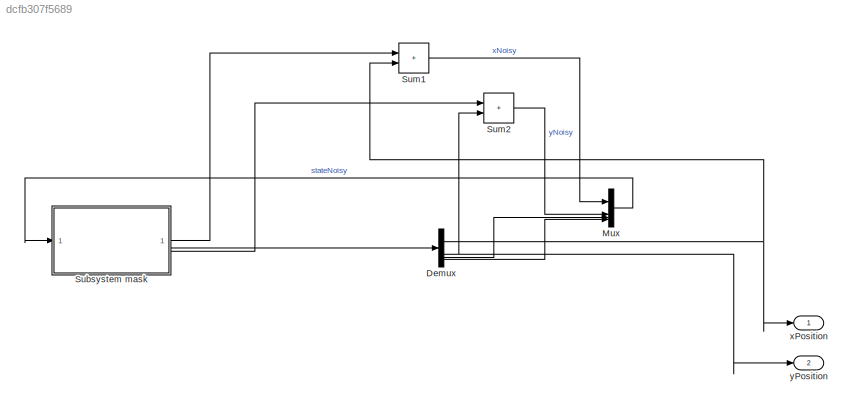
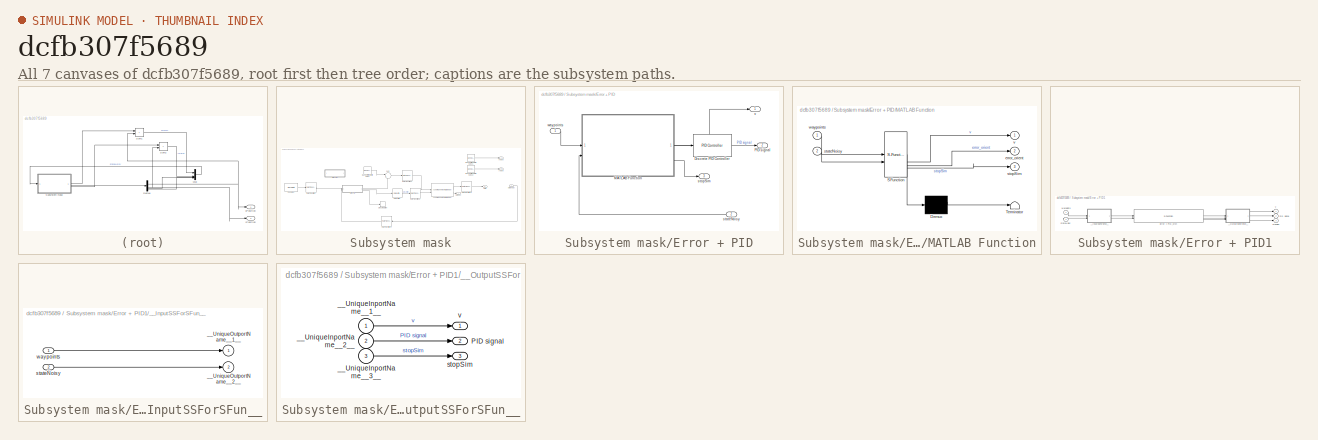
[diagram: thumbnail index - all 7 canvases of the model, root first then tree order]
MODEL slx_dcfb307f5689
KIND model
CONFIG AbsTol = auto
CONFIG EnableMultiTasking = off
CONFIG FixedStep = auto
CONFIG MaxStep = auto
CONFIG MinStep = auto
CONFIG RelTol = 1e-3
CONFIG SampleTimeConstraint = Unconstrained
CONFIG SolverName = FixedStepAuto
CONFIG StartTime = 0.0
CONFIG StopTime = inf
BLOCK [Demux] Demux
BLOCK [Mux] Mux
  DisplayOption = bar
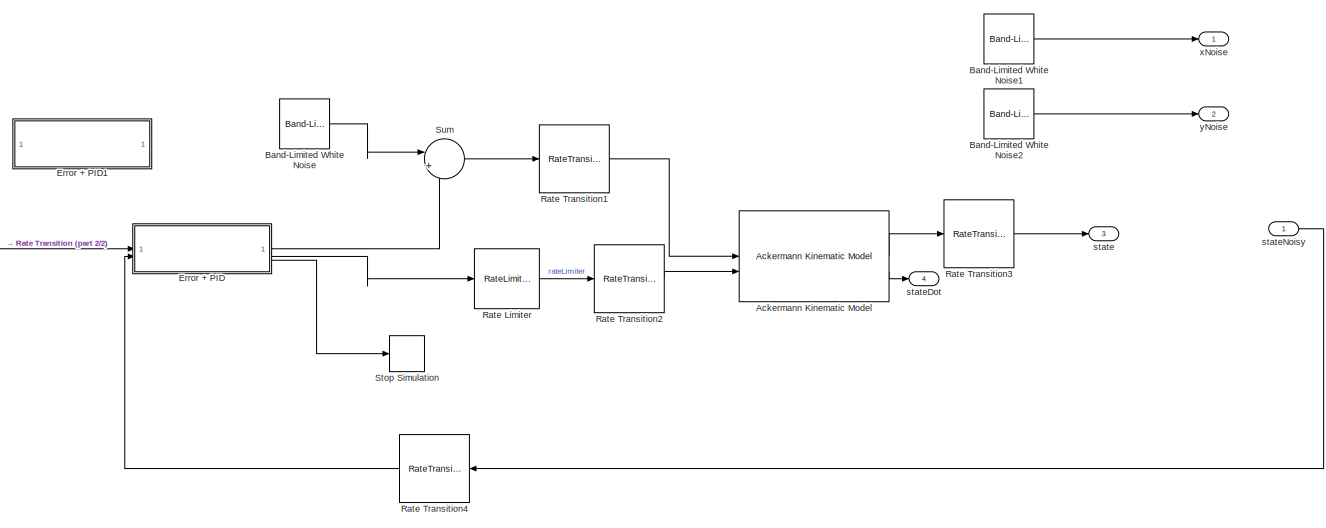
[diagram: Subsystem mask - part 1/2, most of the canvas]
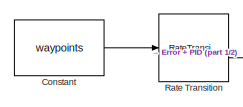
[diagram: Subsystem mask - part 2/2, middle left region]
BLOCK [SubSystem] Subsystem mask
BLOCK [Reference] Subsystem mask/Ackermann Kinematic Model  REF=robotmobilelib/Ackermann Kinematic Model
  SourceBlock = robotmobilelib/Ackermann Kinematic Model
  SourceType = Ackermann Kinematic Model
BLOCK [Reference] Subsystem mask/Band-Limited White Noise  REF=simulink/Sources/Band-Limited
White Noise
  SourceBlock = simulink/Sources/Band-Limited\nWhite Noise
  SourceType = Band-Limited White Noise.
BLOCK [Reference] Subsystem mask/Band-Limited White Noise1  REF=simulink/Sources/Band-Limited
White Noise
  SourceBlock = simulink/Sources/Band-Limited\nWhite Noise
  SourceType = Band-Limited White Noise.
BLOCK [Reference] Subsystem mask/Band-Limited White Noise2  REF=simulink/Sources/Band-Limited
White Noise
  SourceBlock = simulink/Sources/Band-Limited\nWhite Noise
  SourceType = Band-Limited White Noise.
BLOCK [Constant] Subsystem mask/Constant
  Value = waypoints
BLOCK [SubSystem] Subsystem mask/Error + PID
BLOCK [Reference] Subsystem mask/Error + PID/Discrete PID Controller  REF=slpidlib/PID Controller
  LibrarySourceBlock = simulink/Discrete/Discrete PID Controller
  SourceBlock = slpidlib/PID Controller
  SourceType = PID 1dof
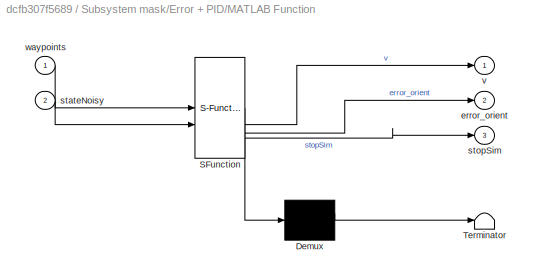
BLOCK [SubSystem] Subsystem mask/Error + PID/MATLAB Function
  ErrorFcn = Stateflow.Translate.translate
  PermitHierarchicalResolution = ExplicitOnly
  SFBlockType = MATLAB Function
  TreatAsAtomicUnit = on
BLOCK [Demux] Subsystem mask/Error + PID/MATLAB Function/ Demux 
  Outputs = 1
BLOCK [S-Function] Subsystem mask/Error + PID/MATLAB Function/ SFunction 
  EnableBusSupport = on
  FunctionName = sf_sfun
  PortCounts = [2 4]
  SFcnIsStateOwnerBlock = off
  SFunctionDeploymentMode = off
  Tag = Stateflow S-Function 2
BLOCK [Terminator] Subsystem mask/Error + PID/MATLAB Function/ Terminator 
BLOCK [Outport] Subsystem mask/Error + PID/MATLAB Function/error_orient
  Port = 2
BLOCK [Inport] Subsystem mask/Error + PID/MATLAB Function/stateNoisy
  Port = 2
BLOCK [Outport] Subsystem mask/Error + PID/MATLAB Function/stopSim
  Port = 3
BLOCK [Outport] Subsystem mask/Error + PID/MATLAB Function/v
BLOCK [Inport] Subsystem mask/Error + PID/MATLAB Function/waypoints
BLOCK [Outport] Subsystem mask/Error + PID/PID signal
  Port = 2
BLOCK [Inport] Subsystem mask/Error + PID/stateNoisy
  Port = 2
BLOCK [Outport] Subsystem mask/Error + PID/stopSim
  Port = 3
BLOCK [Outport] Subsystem mask/Error + PID/v
BLOCK [Inport] Subsystem mask/Error + PID/waypoints
BLOCK [SubSystem] Subsystem mask/Error + PID1
  Commented = on
BLOCK [S-Function] Subsystem mask/Error + PID1/Error + PID_sfcn
  CopyFcn = if ~strcmp(get_param(gcb,'Linkstatus'),'none') && ...\n~strcmp(get_param(gcb,'Linkstatus'),'implicit')      \n  set_param(gcb,'LinkStatus','none');                \nend
  EnableBusSupport = off
  FunctionName = Error_sf
  SFcnIsStateOwnerBlock = on
  SFcnStateName = DWORK0,DWORK1
  SFunctionDeploymentMode = off
BLOCK [Outport] Subsystem mask/Error + PID1/PID signal
  Port = 2
BLOCK [SubSystem] Subsystem mask/Error + PID1/__InputSSForSFun__
  PermitHierarchicalResolution = ExplicitOnly
BLOCK [Outport] Subsystem mask/Error + PID1/__InputSSForSFun__/__UniqueOutportName__1__
BLOCK [Outport] Subsystem mask/Error + PID1/__InputSSForSFun__/__UniqueOutportName__2__
  Port = 2
BLOCK [Inport] Subsystem mask/Error + PID1/__InputSSForSFun__/stateNoisy
  Port = 2
BLOCK [Inport] Subsystem mask/Error + PID1/__InputSSForSFun__/waypoints
BLOCK [SubSystem] Subsystem mask/Error + PID1/__OutputSSForSFun__
  PermitHierarchicalResolution = ExplicitOnly
BLOCK [Outport] Subsystem mask/Error + PID1/__OutputSSForSFun__/PID signal
  Port = 2
BLOCK [Inport] Subsystem mask/Error + PID1/__OutputSSForSFun__/__UniqueInportName__1__
BLOCK [Inport] Subsystem mask/Error + PID1/__OutputSSForSFun__/__UniqueInportName__2__
  Port = 2
BLOCK [Inport] Subsystem mask/Error + PID1/__OutputSSForSFun__/__UniqueInportName__3__
  Port = 3
BLOCK [Outport] Subsystem mask/Error + PID1/__OutputSSForSFun__/stopSim
  Port = 3
BLOCK [Outport] Subsystem mask/Error + PID1/__OutputSSForSFun__/v
BLOCK [Inport] Subsystem mask/Error + PID1/stateNoisy
  Port = 2
BLOCK [Outport] Subsystem mask/Error + PID1/stopSim
  Port = 3
BLOCK [Outport] Subsystem mask/Error + PID1/v
BLOCK [Inport] Subsystem mask/Error + PID1/waypoints
BLOCK [RateLimiter] Subsystem mask/Rate Limiter
  FallingSlewLimit = slewRateNeg
  RisingSlewLimit = slewRatePos
  SampleTimeMode = inherited
BLOCK [RateTransition] Subsystem mask/Rate Transition
  OutPortSampleTime = 1/100
BLOCK [RateTransition] Subsystem mask/Rate Transition1
  OutPortSampleTime = 1/10
BLOCK [RateTransition] Subsystem mask/Rate Transition2
  OutPortSampleTime = 1/100
BLOCK [RateTransition] Subsystem mask/Rate Transition3
  OutPortSampleTime = 1/100
BLOCK [RateTransition] Subsystem mask/Rate Transition4
  OutPortSampleTime = 1/100
BLOCK [Stop] Subsystem mask/Stop Simulation
BLOCK [Sum] Subsystem mask/Sum
  Inputs = |++
BLOCK [Outport] Subsystem mask/state
  Port = 3
BLOCK [Outport] Subsystem mask/stateDot
  Port = 4
BLOCK [Inport] Subsystem mask/stateNoisy
BLOCK [Outport] Subsystem mask/xNoise
BLOCK [Outport] Subsystem mask/yNoise
  Port = 2
BLOCK [Sum] Sum1
  IconShape = rectangular
  Inputs = |++
BLOCK [Sum] Sum2
  IconShape = rectangular
  Inputs = |++
BLOCK [Outport] xPosition
BLOCK [Outport] yPosition
  Port = 2
NET Demux:1 -> Sum1:2, xPosition:1
NET Demux:2 -> Sum2:2, yPosition:1
LINE Demux:3 -> Mux:3
LINE Demux:4 -> Mux:4
LINE Mux:1 -> Subsystem mask:1
LINE Subsystem mask/Ackermann Kinematic Model:1 -> Subsystem mask/Rate Transition3:1
LINE Subsystem mask/Ackermann Kinematic Model:2 -> Subsystem mask/stateDot:1
LINE Subsystem mask/Band-Limited White Noise1:1 -> Subsystem mask/xNoise:1
LINE Subsystem mask/Band-Limited White Noise2:1 -> Subsystem mask/yNoise:1
LINE Subsystem mask/Band-Limited White Noise:1 -> Subsystem mask/Sum:1
LINE Subsystem mask/Constant:1 -> Subsystem mask/Rate Transition:1
LINE Subsystem mask/Error + PID/Discrete PID Controller:1 -> Subsystem mask/Error + PID/PID signal:1
LINE Subsystem mask/Error + PID/MATLAB Function:1 -> Subsystem mask/Error + PID/v:1
LINE Subsystem mask/Error + PID/MATLAB Function:2 -> Subsystem mask/Error + PID/Discrete PID Controller:1
LINE Subsystem mask/Error + PID/MATLAB Function:3 -> Subsystem mask/Error + PID/stopSim:1
LINE Subsystem mask/Error + PID/stateNoisy:1 -> Subsystem mask/Error + PID/MATLAB Function:2
LINE Subsystem mask/Error + PID/waypoints:1 -> Subsystem mask/Error + PID/MATLAB Function:1
LINE Subsystem mask/Error + PID1/Error + PID_sfcn:1 -> Subsystem mask/Error + PID1/__OutputSSForSFun__:1
LINE Subsystem mask/Error + PID1/Error + PID_sfcn:2 -> Subsystem mask/Error + PID1/__OutputSSForSFun__:2
LINE Subsystem mask/Error + PID1/Error + PID_sfcn:3 -> Subsystem mask/Error + PID1/__OutputSSForSFun__:3
LINE Subsystem mask/Error + PID1/__InputSSForSFun__/stateNoisy:1 -> Subsystem mask/Error + PID1/__InputSSForSFun__/__UniqueOutportName__2__:1
LINE Subsystem mask/Error + PID1/__InputSSForSFun__/waypoints:1 -> Subsystem mask/Error + PID1/__InputSSForSFun__/__UniqueOutportName__1__:1
LINE Subsystem mask/Error + PID1/__InputSSForSFun__:1 -> Subsystem mask/Error + PID1/Error + PID_sfcn:1
LINE Subsystem mask/Error + PID1/__InputSSForSFun__:2 -> Subsystem mask/Error + PID1/Error + PID_sfcn:2
LINE Subsystem mask/Error + PID1/__OutputSSForSFun__/__UniqueInportName__1__:1 -> Subsystem mask/Error + PID1/__OutputSSForSFun__/v:1
LINE Subsystem mask/Error + PID1/__OutputSSForSFun__/__UniqueInportName__2__:1 -> Subsystem mask/Error + PID1/__OutputSSForSFun__/PID signal:1
LINE Subsystem mask/Error + PID1/__OutputSSForSFun__/__UniqueInportName__3__:1 -> Subsystem mask/Error + PID1/__OutputSSForSFun__/stopSim:1
LINE Subsystem mask/Error + PID1/__OutputSSForSFun__:1 -> Subsystem mask/Error + PID1/v:1
LINE Subsystem mask/Error + PID1/__OutputSSForSFun__:2 -> Subsystem mask/Error + PID1/PID signal:1
LINE Subsystem mask/Error + PID1/__OutputSSForSFun__:3 -> Subsystem mask/Error + PID1/stopSim:1
LINE Subsystem mask/Error + PID1/stateNoisy:1 -> Subsystem mask/Error + PID1/__InputSSForSFun__:2
LINE Subsystem mask/Error + PID1/waypoints:1 -> Subsystem mask/Error + PID1/__InputSSForSFun__:1
LINE Subsystem mask/Error + PID:1 -> Subsystem mask/Sum:2
LINE Subsystem mask/Error + PID:2 -> Subsystem mask/Rate Limiter:1
LINE Subsystem mask/Error + PID:3 -> Subsystem mask/Stop Simulation:1
LINE Subsystem mask/Rate Limiter:1 -> Subsystem mask/Rate Transition2:1
LINE Subsystem mask/Rate Transition1:1 -> Subsystem mask/Ackermann Kinematic Model:1
LINE Subsystem mask/Rate Transition2:1 -> Subsystem mask/Ackermann Kinematic Model:2
LINE Subsystem mask/Rate Transition3:1 -> Subsystem mask/state:1
LINE Subsystem mask/Rate Transition4:1 -> Subsystem mask/Error + PID:2
LINE Subsystem mask/Rate Transition:1 -> Subsystem mask/Error + PID:1
LINE Subsystem mask/Sum:1 -> Subsystem mask/Rate Transition1:1
LINE Subsystem mask/stateNoisy:1 -> Subsystem mask/Rate Transition4:1
LINE Subsystem mask:1 -> Sum1:1
LINE Subsystem mask:2 -> Sum2:1
LINE Subsystem mask:3 -> Demux:1
LINE Sum1:1 -> Mux:1
LINE Sum2:1 -> Mux:2
note: NET lines group one-source signal fan-out (src -> all destinations, sorted); 1:1 wires keep LINE
CHART Subsystem mask/Error + PID/MATLAB Function states=1 transitions=1
  STATE_LABEL 'eML_blk_kernel()'
  STATE_LABEL 'SCRIPT:\nfunction [v, error_orient, stopSim] = calcOrientation(waypoints, stateNoisy)\n    % calcOrientationErrorUnicycle: Calcula el error de orientación para \n    % un modelo unicycle/Ackermann simplificado que luego se controlará\n    % mediante un PID discreto en Simulink (la salida del PID será la \n    % velocidad de giro w, aquí no la calculamos).\n    %\n    % Entradas:\n    %   - waypoints: matr...<+2228ch>'
CHART  states=0 transitions=0
